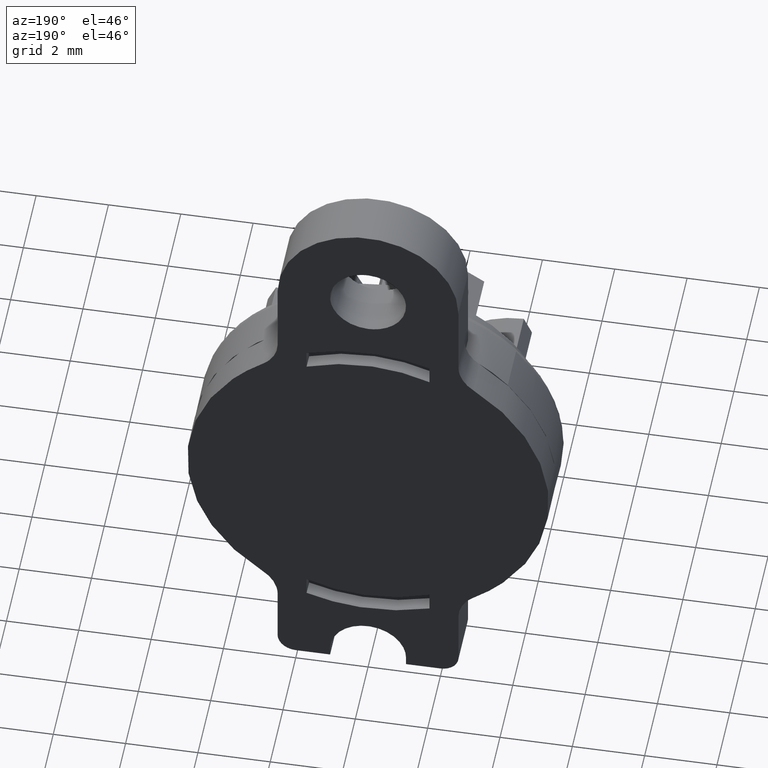
[diagram: clean part render]
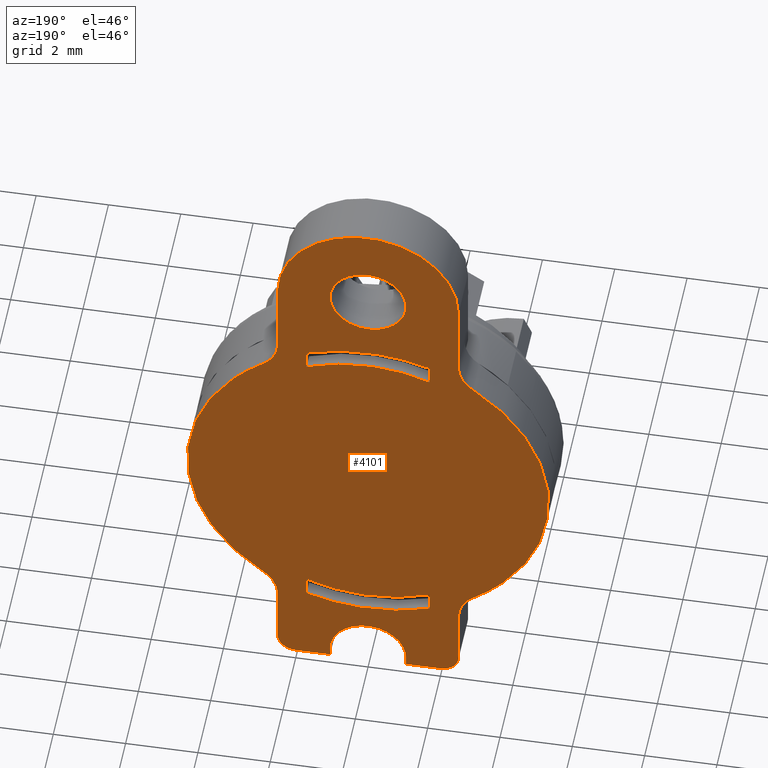
[diagram: same view with one face highlighted and labeled with its STEP entity id]
A machine part, auxiliary view. The second image highlights one B-rep face of the part: STEP entity #4101.
In plain terms, the highlighted face is a freeform B-spline surface patch.
Its self-contained STEP definition (entity closure, byte-faithful):
#3075=CARTESIAN_POINT('',(1.046763200419293,4.510281E-017,6.917617949479427));
#3076=VERTEX_POINT('',#3075);
#3082=CARTESIAN_POINT('',(7.105427E-015,0.0,5.950000000000000));
#3083=VERTEX_POINT('',#3082);
#3084=CARTESIAN_POINT('',(7.105427E-015,0.0,5.950000000000000));
#3085=CARTESIAN_POINT('',(0.970610016235231,0.0,5.950000000000001));
#3086=CARTESIAN_POINT('',(1.046763200419294,0.0,6.917617949479427));
#3094=(BOUNDED_CURVE()B_SPLINE_CURVE(2,(#3084,#3085,#3086),.UNSPECIFIED.,.F.,.U.)B_SPLINE_CURVE_WITH_KNOTS((3,3),(0.0,0.236331300631729),.UNSPECIFIED.)CURVE()GEOMETRIC_REPRESENTATION_ITEM()RATIONAL_B_SPLINE_CURVE((1.0,0.723120658606413,0.969723356169650))REPRESENTATION_ITEM(''));
#3095=EDGE_CURVE('',#3083,#3076,#3094,.T.);
#3097=CARTESIAN_POINT('',(-1.046763200419278,4.510281E-017,7.082382050520574));
#3098=VERTEX_POINT('',#3097);
#3099=CARTESIAN_POINT('',(-1.046763200419279,0.0,7.082382050520575));
#3100=CARTESIAN_POINT('',(-1.049999999999993,0.0,7.041254612361237));
#3101=CARTESIAN_POINT('',(-1.049999999999993,0.0,7.0));
#3102=CARTESIAN_POINT('',(-1.049999999999993,0.0,5.950000000000000));
#3103=CARTESIAN_POINT('',(7.105427E-015,0.0,5.950000000000000));
#3111=(BOUNDED_CURVE()B_SPLINE_CURVE(2,(#3099,#3100,#3101,#3102,#3103),.UNSPECIFIED.,.F.,.U.)B_SPLINE_CURVE_WITH_KNOTS((3,2,3),(0.736331300631729,0.750000000000000,1.0),.UNSPECIFIED.)CURVE()GEOMETRIC_REPRESENTATION_ITEM()RATIONAL_B_SPLINE_CURVE((0.969723356169650,0.983986122580135,1.0,0.707106781186548,1.0))REPRESENTATION_ITEM(''));
#3112=EDGE_CURVE('',#3098,#3083,#3111,.T.);
#3188=CARTESIAN_POINT('',(7.105427E-015,0.0,8.050000000000001));
#3189=VERTEX_POINT('',#3188);
#3190=CARTESIAN_POINT('',(7.105427E-015,0.0,8.050000000000001));
#3191=CARTESIAN_POINT('',(-0.970610016235216,0.0,8.050000000000001));
#3192=CARTESIAN_POINT('',(-1.046763200419279,0.0,7.082382050520574));
#3200=(BOUNDED_CURVE()B_SPLINE_CURVE(2,(#3190,#3191,#3192),.UNSPECIFIED.,.F.,.U.)B_SPLINE_CURVE_WITH_KNOTS((3,3),(0.500000000000000,0.736331300631729),.UNSPECIFIED.)CURVE()GEOMETRIC_REPRESENTATION_ITEM()RATIONAL_B_SPLINE_CURVE((1.0,0.723120658606413,0.969723356169650))REPRESENTATION_ITEM(''));
#3201=EDGE_CURVE('',#3189,#3098,#3200,.T.);
#3203=CARTESIAN_POINT('',(1.046763200419294,0.0,6.917617949479427));
#3204=CARTESIAN_POINT('',(1.050000000000008,0.0,6.958745387638765));
#3205=CARTESIAN_POINT('',(1.050000000000007,0.0,7.0));
#3206=CARTESIAN_POINT('',(1.050000000000007,0.0,8.050000000000001));
#3207=CARTESIAN_POINT('',(7.105427E-015,0.0,8.050000000000001));
#3215=(BOUNDED_CURVE()B_SPLINE_CURVE(2,(#3203,#3204,#3205,#3206,#3207),.UNSPECIFIED.,.F.,.U.)B_SPLINE_CURVE_WITH_KNOTS((3,2,3),(0.236331300631729,0.250000000000000,0.500000000000000),.UNSPECIFIED.)CURVE()GEOMETRIC_REPRESENTATION_ITEM()RATIONAL_B_SPLINE_CURVE((0.969723356169650,0.983986122580135,1.0,0.707106781186548,1.0))REPRESENTATION_ITEM(''));
#3216=EDGE_CURVE('',#3076,#3189,#3215,.T.);
#3340=CARTESIAN_POINT('',(1.700000000000000,0.0,4.166533331216964));
#3341=VERTEX_POINT('',#3340);
#3342=CARTESIAN_POINT('',(-1.700000000000025,0.0,4.166533331216964));
#3343=VERTEX_POINT('',#3342);
#3344=CARTESIAN_POINT('',(1.700000000000002,0.0,4.166533331216968));
#3345=CARTESIAN_POINT('',(-1.095825E-014,0.0,4.860155527479570));
#3346=CARTESIAN_POINT('',(-1.700000000000024,0.0,4.166533331216971));
#3354=(BOUNDED_CURVE()B_SPLINE_CURVE(2,(#3344,#3345,#3346),.UNSPECIFIED.,.F.,.U.)CURVE()GEOMETRIC_REPRESENTATION_ITEM()QUASI_UNIFORM_CURVE()RATIONAL_B_SPLINE_CURVE((1.0,0.925896295822746,1.0))REPRESENTATION_ITEM(''));
#3355=EDGE_CURVE('',#3341,#3343,#3354,.T.);
#3376=CARTESIAN_POINT('',(1.700000000000000,0.0,4.702127178203489));
#3377=VERTEX_POINT('',#3376);
#3378=CARTESIAN_POINT('',(1.700000000000000,0.0,4.702127178203489));
#3379=CARTESIAN_POINT('',(1.700000000000000,0.0,4.166533331216964));
#3380=QUASI_UNIFORM_CURVE('',1,(#3378,#3379),.UNSPECIFIED.,.F.,.U.);
#3381=EDGE_CURVE('',#3377,#3341,#3380,.T.);
#3407=CARTESIAN_POINT('',(-1.700000000000000,0.0,4.702127178203500));
#3408=VERTEX_POINT('',#3407);
#3409=CARTESIAN_POINT('',(1.700000000000002,0.0,4.702127178203493));
#3410=CARTESIAN_POINT('',(3.786901E-015,0.0,5.316742625738917));
#3411=CARTESIAN_POINT('',(-1.699999999999999,0.0,4.702127178203504));
#3419=(BOUNDED_CURVE()B_SPLINE_CURVE(2,(#3409,#3410,#3411),.UNSPECIFIED.,.F.,.U.)CURVE()GEOMETRIC_REPRESENTATION_ITEM()QUASI_UNIFORM_CURVE()RATIONAL_B_SPLINE_CURVE((1.0,0.940425435640700,1.0))REPRESENTATION_ITEM(''));
#3420=EDGE_CURVE('',#3377,#3408,#3419,.T.);
#3437=CARTESIAN_POINT('',(-1.700000000000025,0.0,4.166533331216964));
#3438=CARTESIAN_POINT('',(-1.700000000000000,0.0,4.702127178203500));
#3439=QUASI_UNIFORM_CURVE('',1,(#3437,#3438),.UNSPECIFIED.,.F.,.U.);
#3440=EDGE_CURVE('',#3343,#3408,#3439,.T.);
#3453=CARTESIAN_POINT('',(1.700000000000000,0.0,-4.166533331217069));
#3454=VERTEX_POINT('',#3453);
#3455=CARTESIAN_POINT('',(1.700000000000000,0.0,-4.702127178203600));
#3456=VERTEX_POINT('',#3455);
#3457=CARTESIAN_POINT('',(1.700000000000000,0.0,-4.166533331217069));
#3458=CARTESIAN_POINT('',(1.700000000000000,0.0,-4.702127178203600));
#3459=QUASI_UNIFORM_CURVE('',1,(#3457,#3458),.UNSPECIFIED.,.F.,.U.);
#3460=EDGE_CURVE('',#3454,#3456,#3459,.T.);
#3490=CARTESIAN_POINT('',(-1.700000000000000,0.0,-4.166533331217069));
#3491=VERTEX_POINT('',#3490);
#3492=CARTESIAN_POINT('',(-1.700000000000000,0.0,-4.166533331217069));
#3493=CARTESIAN_POINT('',(-9.835882E-016,0.0,-4.860155527479680));
#3494=CARTESIAN_POINT('',(1.700000000000004,0.0,-4.166533331217081));
#3502=(BOUNDED_CURVE()B_SPLINE_CURVE(2,(#3492,#3493,#3494),.UNSPECIFIED.,.F.,.U.)CURVE()GEOMETRIC_REPRESENTATION_ITEM()QUASI_UNIFORM_CURVE()RATIONAL_B_SPLINE_CURVE((1.0,0.925896295822747,1.0))REPRESENTATION_ITEM(''));
#3503=EDGE_CURVE('',#3491,#3454,#3502,.T.);
#3520=CARTESIAN_POINT('',(-1.700000000000000,0.0,-4.702127178203600));
#3521=VERTEX_POINT('',#3520);
#3522=CARTESIAN_POINT('',(-1.700000000000000,0.0,-4.702127178203600));
#3523=CARTESIAN_POINT('',(-1.700000000000000,0.0,-4.166533331217069));
#3524=QUASI_UNIFORM_CURVE('',1,(#3522,#3523),.UNSPECIFIED.,.F.,.U.);
#3525=EDGE_CURVE('',#3521,#3491,#3524,.T.);
#3551=CARTESIAN_POINT('',(-1.700000000000006,0.0,-4.702127178203615));
#3552=CARTESIAN_POINT('',(-5.499073E-016,0.0,-5.316742625739033));
#3553=CARTESIAN_POINT('',(1.700000000000002,0.0,-4.702127178203607));
#3561=(BOUNDED_CURVE()B_SPLINE_CURVE(2,(#3551,#3552,#3553),.UNSPECIFIED.,.F.,.U.)CURVE()GEOMETRIC_REPRESENTATION_ITEM()QUASI_UNIFORM_CURVE()RATIONAL_B_SPLINE_CURVE((1.0,0.940425435640700,1.0))REPRESENTATION_ITEM(''));
#3562=EDGE_CURVE('',#3521,#3456,#3561,.T.);
#3584=CARTESIAN_POINT('',(2.0,0.0,-7.0));
#3585=VERTEX_POINT('',#3584);
#3586=CARTESIAN_POINT('',(2.500000000000000,0.0,-6.500000000000000));
#3587=VERTEX_POINT('',#3586);
#3588=CARTESIAN_POINT('',(2.0,0.0,-6.999999999999999));
#3589=CARTESIAN_POINT('',(2.500000000000000,0.0,-6.999999999999999));
#3590=CARTESIAN_POINT('',(2.500000000000000,0.0,-6.500000000000000));
#3598=(BOUNDED_CURVE()B_SPLINE_CURVE(2,(#3588,#3589,#3590),.UNSPECIFIED.,.F.,.U.)CURVE()GEOMETRIC_REPRESENTATION_ITEM()QUASI_UNIFORM_CURVE()RATIONAL_B_SPLINE_CURVE((1.0,0.707106781186548,1.0))REPRESENTATION_ITEM(''));
#3599=EDGE_CURVE('',#3585,#3587,#3598,.T.);
#3636=CARTESIAN_POINT('',(1.050000000000000,0.0,-7.0));
#3637=VERTEX_POINT('',#3636);
#3638=CARTESIAN_POINT('',(1.050000000000000,0.0,-7.0));
#3639=CARTESIAN_POINT('',(2.0,0.0,-7.0));
#3640=QUASI_UNIFORM_CURVE('',1,(#3638,#3639),.UNSPECIFIED.,.F.,.U.);
#3641=EDGE_CURVE('',#3637,#3585,#3640,.T.);
#3664=CARTESIAN_POINT('',(1.050000000000000,0.0,-6.750000000000000));
#3665=VERTEX_POINT('',#3664);
#3666=CARTESIAN_POINT('',(1.050000000000000,0.0,-6.750000000000000));
#3667=CARTESIAN_POINT('',(1.050000000000000,0.0,-7.0));
#3668=QUASI_UNIFORM_CURVE('',1,(#3666,#3667),.UNSPECIFIED.,.F.,.U.);
#3669=EDGE_CURVE('',#3665,#3637,#3668,.T.);
#3705=CARTESIAN_POINT('',(-1.050000000000000,0.0,-6.750000000000000));
#3706=VERTEX_POINT('',#3705);
#3707=CARTESIAN_POINT('',(1.050000000000000,0.0,-6.750000000000000));
#3708=CARTESIAN_POINT('',(1.050007005742587,0.0,-6.685576434123967));
#3709=CARTESIAN_POINT('',(1.038894149884731,0.0,-6.565319544188187));
#3710=CARTESIAN_POINT('',(0.983855056628210,0.0,-6.361482089688796));
#3711=CARTESIAN_POINT('',(0.893199023106565,0.0,-6.184083337190407));
#3712=CARTESIAN_POINT('',(0.774757205535123,0.0,-6.036148413290636));
#3713=CARTESIAN_POINT('',(0.636791411283766,0.0,-5.906357120144313));
#3714=CARTESIAN_POINT('',(0.453136353587992,0.0,-5.791632841199401));
#3715=CARTESIAN_POINT('',(0.235650595514955,0.0,-5.719801201438590));
#3716=CARTESIAN_POINT('',(0.051671256213434,0.0,-5.697123418707575));
#3717=CARTESIAN_POINT('',(-0.129048500102279,0.0,-5.702664606255665));
#3718=CARTESIAN_POINT('',(-0.332103312440134,0.0,-5.744332619527776));
#3719=CARTESIAN_POINT('',(-0.540634573152109,0.0,-5.839845349607348));
#3720=CARTESIAN_POINT('',(-0.712365641807012,0.0,-5.970529627200659));
#3721=CARTESIAN_POINT('',(-0.842645573649118,0.0,-6.114272178736875));
#3722=CARTESIAN_POINT('',(-0.956926573701400,0.0,-6.297179470248538));
#3723=CARTESIAN_POINT('',(-1.032928007268871,0.0,-6.513763895815242));
#3724=CARTESIAN_POINT('',(-1.050004898195711,0.0,-6.676983865353371));
#3725=CARTESIAN_POINT('',(-1.050000000000000,0.0,-6.750000000000000));
#3726=B_SPLINE_CURVE_WITH_KNOTS('',3,(#3707,#3708,#3709,#3710,#3711,#3712,#3713,#3714,#3715,#3716,#3717,#3718,#3719,#3720,#3721,#3722,#3723,#3724,#3725),.UNSPECIFIED.,.F.,.U.,(4,1,1,1,1,1,1,1,1,1,1,1,1,1,1,1,4),(0.000000056539614,0.193270073555136,0.360785414899064,0.631389718495853,0.786016904852598,0.927760030615048,1.198355590897062,1.430293900686739,1.610702025759531,1.752425133367448,1.971474689232939,2.229190682993826,2.435362879923257,2.615763117551935,2.809044305098549,3.079640248293047,3.298692984056264),.UNSPECIFIED.);
#3727=EDGE_CURVE('',#3665,#3706,#3726,.T.);
#3767=CARTESIAN_POINT('',(-1.050000000000000,0.0,-7.0));
#3768=VERTEX_POINT('',#3767);
#3769=CARTESIAN_POINT('',(-1.050000000000000,0.0,-7.0));
#3770=CARTESIAN_POINT('',(-1.050000000000000,0.0,-6.750000000000000));
#3771=QUASI_UNIFORM_CURVE('',1,(#3769,#3770),.UNSPECIFIED.,.F.,.U.);
#3772=EDGE_CURVE('',#3768,#3706,#3771,.T.);
#3795=CARTESIAN_POINT('',(-2.0,0.0,-7.0));
#3796=VERTEX_POINT('',#3795);
#3797=CARTESIAN_POINT('',(-2.0,0.0,-7.0));
#3798=CARTESIAN_POINT('',(-1.050000000000000,0.0,-7.0));
#3799=QUASI_UNIFORM_CURVE('',1,(#3797,#3798),.UNSPECIFIED.,.F.,.U.);
#3800=EDGE_CURVE('',#3796,#3768,#3799,.T.);
#3832=CARTESIAN_POINT('',(-2.500000000000000,0.0,-6.500000000000000));
#3833=VERTEX_POINT('',#3832);
#3834=CARTESIAN_POINT('',(-2.500000000000000,0.0,-6.500000000000000));
#3835=CARTESIAN_POINT('',(-2.500000000000000,0.0,-6.999999999999999));
#3836=CARTESIAN_POINT('',(-2.0,0.0,-6.999999999999999));
#3844=(BOUNDED_CURVE()B_SPLINE_CURVE(2,(#3834,#3835,#3836),.UNSPECIFIED.,.F.,.U.)CURVE()GEOMETRIC_REPRESENTATION_ITEM()QUASI_UNIFORM_CURVE()RATIONAL_B_SPLINE_CURVE((1.0,0.707106781186548,1.0))REPRESENTATION_ITEM(''));
#3845=EDGE_CURVE('',#3833,#3796,#3844,.T.);
#3913=CARTESIAN_POINT('',(-5.499499980618067,0.0,-7.824174968019797));
#3914=CARTESIAN_POINT('',(5.499500248838953,0.0,-7.824174968019797));
#3915=CARTESIAN_POINT('',(-5.499499980618067,0.0,10.324175410584269));
#3916=CARTESIAN_POINT('',(5.499500248838953,0.0,10.324175410584269));
#3917=B_SPLINE_SURFACE_WITH_KNOTS('',1,1,((#3913,#3915),(#3914,#3916)),.UNSPECIFIED.,.F.,.F.,.U.,(2,2),(2,2),(0.0,10.999000229457019),(0.0,18.148350378604061),.UNSPECIFIED.);
#3918=CARTESIAN_POINT('',(-2.500000000000000,0.0,7.0));
#3919=VERTEX_POINT('',#3918);
#3920=CARTESIAN_POINT('',(-2.500000000000000,0.0,4.873397172404481));
#3921=VERTEX_POINT('',#3920);
#3922=CARTESIAN_POINT('',(-2.500000000000000,0.0,7.0));
#3923=CARTESIAN_POINT('',(-2.500000000000000,0.0,4.873397172404481));
#3924=QUASI_UNIFORM_CURVE('',1,(#3922,#3923),.UNSPECIFIED.,.F.,.U.);
#3925=EDGE_CURVE('',#3919,#3921,#3924,.T.);
#3926=ORIENTED_EDGE('',*,*,#3925,.F.);
#3927=CARTESIAN_POINT('',(2.500000000000000,0.0,7.0));
#3928=VERTEX_POINT('',#3927);
#3929=CARTESIAN_POINT('',(2.500000000000000,0.0,7.0));
#3930=CARTESIAN_POINT('',(2.500011220517625,0.0,7.153395486604099));
#3931=CARTESIAN_POINT('',(2.468861171970289,0.0,7.490868222539188));
#3932=CARTESIAN_POINT('',(2.322530689116268,0.0,7.973327746651465));
#3933=CARTESIAN_POINT('',(2.089623589677256,0.0,8.396433448946539));
#3934=CARTESIAN_POINT('',(1.828001650100847,0.0,8.719221369162522));
#3935=CARTESIAN_POINT('',(1.528789571208146,0.0,8.992101884160578));
#3936=CARTESIAN_POINT('',(1.214577899440330,0.0,9.196513112811180));
#3937=CARTESIAN_POINT('',(0.822245964572626,0.0,9.373318514459676));
#3938=CARTESIAN_POINT('',(0.454373062866439,0.0,9.470286484943932));
#3939=CARTESIAN_POINT('',(0.071780139421745,0.0,9.505567988613791));
#3940=CARTESIAN_POINT('',(-0.302048927365358,0.0,9.492972824117068));
#3941=CARTESIAN_POINT('',(-0.715264661586081,0.0,9.410782726020786));
#3942=CARTESIAN_POINT('',(-1.124681315855275,0.0,9.245584239234962));
#3943=CARTESIAN_POINT('',(-1.461500352174435,0.0,9.039458930611245));
#3944=CARTESIAN_POINT('',(-1.752496016547036,0.0,8.796128407383238));
#3945=CARTESIAN_POINT('',(-2.014140886632637,0.0,8.500241494198550));
#3946=CARTESIAN_POINT('',(-2.223505031200167,0.0,8.165079094088693));
#3947=CARTESIAN_POINT('',(-2.383919278248646,0.0,7.787672225614136));
#3948=CARTESIAN_POINT('',(-2.478783237874614,0.0,7.403945054501249));
#3949=CARTESIAN_POINT('',(-2.500006539630959,0.0,7.127831514868080));
#3950=CARTESIAN_POINT('',(-2.500000000000000,0.0,7.0));
#3951=B_SPLINE_CURVE_WITH_KNOTS('',3,(#3929,#3930,#3931,#3932,#3933,#3934,#3935,#3936,#3937,#3938,#3939,#3940,#3941,#3942,#3943,#3944,#3945,#3946,#3947,#3948,#3949,#3950),.UNSPECIFIED.,.F.,.U.,(4,1,1,1,1,1,1,1,1,1,1,1,1,1,1,1,1,1,1,4),(0.000000038959452,0.460187069990953,1.012421778684436,1.503301393173516,1.902139470392530,2.254956188688503,2.715152301823396,3.021952527966294,3.543503477473808,3.850301138427814,4.172421976077818,4.663299047989472,5.108163280516316,5.491658049031761,5.844476025048673,6.243312299253508,6.672828891632230,7.025652359075371,7.470498894259809,7.853993954596673),.UNSPECIFIED.);
#3952=EDGE_CURVE('',#3928,#3919,#3951,.T.);
#3953=ORIENTED_EDGE('',*,*,#3952,.F.);
#3954=CARTESIAN_POINT('',(2.500000000000000,0.0,4.873397172404481));
#3955=VERTEX_POINT('',#3954);
#3956=CARTESIAN_POINT('',(2.500000000000000,0.0,4.873397172404481));
#3957=CARTESIAN_POINT('',(2.500000000000000,0.0,7.0));
#3958=QUASI_UNIFORM_CURVE('',1,(#3956,#3957),.UNSPECIFIED.,.F.,.U.);
#3959=EDGE_CURVE('',#3955,#3928,#3958,.T.);
#3960=ORIENTED_EDGE('',*,*,#3959,.F.);
#3961=CARTESIAN_POINT('',(2.916666666666655,0.0,4.061164310337071));
#3962=VERTEX_POINT('',#3961);
#3963=CARTESIAN_POINT('',(2.500000000000000,0.0,4.873397172404481));
#3964=CARTESIAN_POINT('',(2.500000000000000,0.0,4.360407996361911));
#3965=CARTESIAN_POINT('',(2.916666666666657,0.0,4.061164310337074));
#3973=(BOUNDED_CURVE()B_SPLINE_CURVE(2,(#3963,#3964,#3965),.UNSPECIFIED.,.F.,.U.)CURVE()GEOMETRIC_REPRESENTATION_ITEM()QUASI_UNIFORM_CURVE()RATIONAL_B_SPLINE_CURVE((1.0,0.889756521002612,1.0))REPRESENTATION_ITEM(''));
#3974=EDGE_CURVE('',#3955,#3962,#3973,.T.);
#3975=ORIENTED_EDGE('',*,*,#3974,.T.);
#3976=CARTESIAN_POINT('',(2.916666666666670,0.0,-4.061164310337071));
#3977=VERTEX_POINT('',#3976);
#3978=CARTESIAN_POINT('',(2.916666666666670,0.0,-4.061164310337071));
#3979=CARTESIAN_POINT('',(3.207456458630582,0.0,-3.852408353177686));
#3980=CARTESIAN_POINT('',(3.651333381854649,0.0,-3.454838441777005));
#3981=CARTESIAN_POINT('',(4.191970100041232,0.0,-2.762327982895506));
#3982=CARTESIAN_POINT('',(4.541039002110905,0.0,-2.134304670463381));
#3983=CARTESIAN_POINT('',(4.813180520902719,0.0,-1.417593927508520));
#3984=CARTESIAN_POINT('',(4.974293155356738,0.0,-0.691978332974171));
#3985=CARTESIAN_POINT('',(5.016893766348680,0.0,0.074442021849690));
#3986=CARTESIAN_POINT('',(4.953210019447623,0.0,0.789115415605036));
#3987=CARTESIAN_POINT('',(4.817409734811525,0.0,1.380035923574430));
#3988=CARTESIAN_POINT('',(4.631626982281780,0.0,1.904080887902194));
#3989=CARTESIAN_POINT('',(4.391034669015823,0.0,2.419227393563223));
#3990=CARTESIAN_POINT('',(4.034394751411957,0.0,2.984498044398972));
#3991=CARTESIAN_POINT('',(3.533604740069014,0.0,3.565959938711422));
#3992=CARTESIAN_POINT('',(3.137243521099101,0.0,3.902775265572735));
#3993=CARTESIAN_POINT('',(2.916666666666655,0.0,4.061164310337071));
#3994=B_SPLINE_CURVE_WITH_KNOTS('',3,(#3978,#3979,#3980,#3981,#3982,#3983,#3984,#3985,#3986,#3987,#3988,#3989,#3990,#3991,#3992,#3993),.UNSPECIFIED.,.F.,.U.,(4,1,1,1,1,1,1,1,1,1,1,1,1,4),(4.250369E-009,1.073871404255108,1.777445706548366,2.629141572410706,3.221626028827665,4.073321137400575,4.850944669464115,5.517486279744299,6.221062057539772,6.665425930231219,7.183849843118161,7.924453044452033,8.665061496751829,9.479719078071888),.UNSPECIFIED.);
#3995=EDGE_CURVE('',#3977,#3962,#3994,.T.);
#3996=ORIENTED_EDGE('',*,*,#3995,.F.);
#3997=CARTESIAN_POINT('',(2.500000000000000,0.0,-4.873397172404481));
#3998=VERTEX_POINT('',#3997);
#3999=CARTESIAN_POINT('',(2.916666666666667,0.0,-4.061164310337066));
#4000=CARTESIAN_POINT('',(2.500000000000000,0.0,-4.360407996361904));
#4001=CARTESIAN_POINT('',(2.500000000000000,0.0,-4.873397172404481));
#4009=(BOUNDED_CURVE()B_SPLINE_CURVE(2,(#3999,#4000,#4001),.UNSPECIFIED.,.F.,.U.)CURVE()GEOMETRIC_REPRESENTATION_ITEM()QUASI_UNIFORM_CURVE()RATIONAL_B_SPLINE_CURVE((1.0,0.889756521002609,1.0))REPRESENTATION_ITEM(''));
#4010=EDGE_CURVE('',#3977,#3998,#4009,.T.);
#4011=ORIENTED_EDGE('',*,*,#4010,.T.);
#4012=CARTESIAN_POINT('',(2.500000000000000,0.0,-6.500000000000000));
#4013=CARTESIAN_POINT('',(2.500000000000000,0.0,-4.873397172404481));
#4014=QUASI_UNIFORM_CURVE('',1,(#4012,#4013),.UNSPECIFIED.,.F.,.U.);
#4015=EDGE_CURVE('',#3587,#3998,#4014,.T.);
#4016=ORIENTED_EDGE('',*,*,#4015,.F.);
#4017=ORIENTED_EDGE('',*,*,#3599,.F.);
#4018=ORIENTED_EDGE('',*,*,#3641,.F.);
#4019=ORIENTED_EDGE('',*,*,#3669,.F.);
#4020=ORIENTED_EDGE('',*,*,#3727,.T.);
#4021=ORIENTED_EDGE('',*,*,#3772,.F.);
#4022=ORIENTED_EDGE('',*,*,#3800,.F.);
#4023=ORIENTED_EDGE('',*,*,#3845,.F.);
#4024=CARTESIAN_POINT('',(-2.500000000000000,0.0,-4.873397172404510));
#4025=VERTEX_POINT('',#4024);
#4026=CARTESIAN_POINT('',(-2.500000000000000,0.0,-4.873397172404510));
#4027=CARTESIAN_POINT('',(-2.500000000000000,0.0,-6.500000000000000));
#4028=QUASI_UNIFORM_CURVE('',1,(#4026,#4027),.UNSPECIFIED.,.F.,.U.);
#4029=EDGE_CURVE('',#4025,#3833,#4028,.T.);
#4030=ORIENTED_EDGE('',*,*,#4029,.F.);
#4031=CARTESIAN_POINT('',(-2.916666666666660,0.0,-4.061164310337080));
#4032=VERTEX_POINT('',#4031);
#4033=CARTESIAN_POINT('',(-2.500000000000000,0.0,-4.873397172404510));
#4034=CARTESIAN_POINT('',(-2.500000000000000,0.0,-4.360407996361930));
#4035=CARTESIAN_POINT('',(-2.916666666666670,0.0,-4.061164310337094));
#4043=(BOUNDED_CURVE()B_SPLINE_CURVE(2,(#4033,#4034,#4035),.UNSPECIFIED.,.F.,.U.)CURVE()GEOMETRIC_REPRESENTATION_ITEM()QUASI_UNIFORM_CURVE()RATIONAL_B_SPLINE_CURVE((1.0,0.889756521002608,1.0))REPRESENTATION_ITEM(''));
#4044=EDGE_CURVE('',#4025,#4032,#4043,.T.);
#4045=ORIENTED_EDGE('',*,*,#4044,.T.);
#4046=CARTESIAN_POINT('',(-2.916666666666675,0.0,4.061164310337065));
#4047=VERTEX_POINT('',#4046);
#4048=CARTESIAN_POINT('',(-2.916666666666675,0.0,4.061164310337065));
#4049=CARTESIAN_POINT('',(-3.107156201456005,0.0,3.924364169707733));
#4050=CARTESIAN_POINT('',(-3.506929642643294,0.0,3.592283763738872));
#4051=CARTESIAN_POINT('',(-4.014582644645096,0.0,3.015904115456809));
#4052=CARTESIAN_POINT('',(-4.410849997879373,0.0,2.387825200197996));
#4053=CARTESIAN_POINT('',(-4.676513036186591,0.0,1.802128927928914));
#4054=CARTESIAN_POINT('',(-4.841072117540915,0.0,1.283669874310867));
#4055=CARTESIAN_POINT('',(-4.947906945672593,0.0,0.775851432167783));
#4056=CARTESIAN_POINT('',(-5.015518637341134,0.0,0.149002881401667));
#4057=CARTESIAN_POINT('',(-4.989812598986439,0.0,-0.544474410100936));
#4058=CARTESIAN_POINT('',(-4.845853441489811,0.0,-1.297647402392657));
#4059=CARTESIAN_POINT('',(-4.629487100626202,0.0,-1.930227755291385));
#4060=CARTESIAN_POINT('',(-4.362484730293726,0.0,-2.460304232392175));
#4061=CARTESIAN_POINT('',(-4.064110223495685,0.0,-2.929358878096833));
#4062=CARTESIAN_POINT('',(-3.624066846408088,0.0,-3.480339165378824));
#4063=CARTESIAN_POINT('',(-3.197419314450389,0.0,-3.859597529253199));
#4064=CARTESIAN_POINT('',(-2.916666666666660,0.0,-4.061164310337080));
#4065=B_SPLINE_CURVE_WITH_KNOTS('',3,(#4048,#4049,#4050,#4051,#4052,#4053,#4054,#4055,#4056,#4057,#4058,#4059,#4060,#4061,#4062,#4063,#4064),.UNSPECIFIED.,.F.,.U.,(4,1,1,1,1,1,1,1,1,1,1,1,1,1,4),(4.244354E-009,0.703569007289943,1.555264469781947,2.295869371831005,2.925382476279101,3.480839154629225,3.925202778530085,4.480656698260611,5.369367226548940,5.998881637838156,6.776518025200105,7.369001605408279,7.776334866211901,8.442878340993198,9.479719078071941),.UNSPECIFIED.);
#4066=EDGE_CURVE('',#4047,#4032,#4065,.T.);
#4067=ORIENTED_EDGE('',*,*,#4066,.F.);
#4068=CARTESIAN_POINT('',(-2.916666666666673,0.0,4.061164310337063));
#4069=CARTESIAN_POINT('',(-2.499999999999999,0.0,4.360407996361898));
#4070=CARTESIAN_POINT('',(-2.500000000000000,0.0,4.873397172404481));
#4078=(BOUNDED_CURVE()B_SPLINE_CURVE(2,(#4068,#4069,#4070),.UNSPECIFIED.,.F.,.U.)CURVE()GEOMETRIC_REPRESENTATION_ITEM()QUASI_UNIFORM_CURVE()RATIONAL_B_SPLINE_CURVE((1.0,0.889756521002607,1.0))REPRESENTATION_ITEM(''));
#4079=EDGE_CURVE('',#4047,#3921,#4078,.T.);
#4080=ORIENTED_EDGE('',*,*,#4079,.T.);
#4081=EDGE_LOOP('',(#3926,#3953,#3960,#3975,#3996,#4011,#4016,#4017,#4018,#4019,#4020,#4021,#4022,#4023,#4030,#4045,#4067,#4080));
#4082=FACE_OUTER_BOUND('',#4081,.T.);
#4083=ORIENTED_EDGE('',*,*,#3562,.T.);
#4084=ORIENTED_EDGE('',*,*,#3460,.F.);
#4085=ORIENTED_EDGE('',*,*,#3503,.F.);
#4086=ORIENTED_EDGE('',*,*,#3525,.F.);
#4087=EDGE_LOOP('',(#4083,#4084,#4085,#4086));
#4088=FACE_BOUND('',#4087,.T.);
#4089=ORIENTED_EDGE('',*,*,#3440,.F.);
#4090=ORIENTED_EDGE('',*,*,#3355,.F.);
#4091=ORIENTED_EDGE('',*,*,#3381,.F.);
#4092=ORIENTED_EDGE('',*,*,#3420,.T.);
#4093=EDGE_LOOP('',(#4089,#4090,#4091,#4092));
#4094=FACE_BOUND('',#4093,.T.);
#4095=ORIENTED_EDGE('',*,*,#3201,.T.);
#4096=ORIENTED_EDGE('',*,*,#3112,.T.);
#4097=ORIENTED_EDGE('',*,*,#3095,.T.);
#4098=ORIENTED_EDGE('',*,*,#3216,.T.);
#4099=EDGE_LOOP('',(#4095,#4096,#4097,#4098));
#4100=FACE_BOUND('',#4099,.T.);
#4101=ADVANCED_FACE('',(#4082,#4088,#4094,#4100),#3917,.F.);